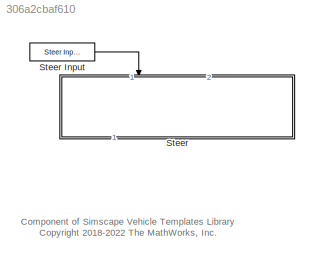
MODEL slx_306a2cbaf610
KIND library
CONFIG AbsTol = auto
CONFIG EnableMultiTasking = off
CONFIG FixedStep = auto
CONFIG MaxStep = auto
CONFIG MinStep = auto
CONFIG RelTol = 1e-3
CONFIG SampleTimeConstraint = Unconstrained
CONFIG SolverName = VariableStepAuto
CONFIG StartTime = 0.0
CONFIG StopTime = 10.0
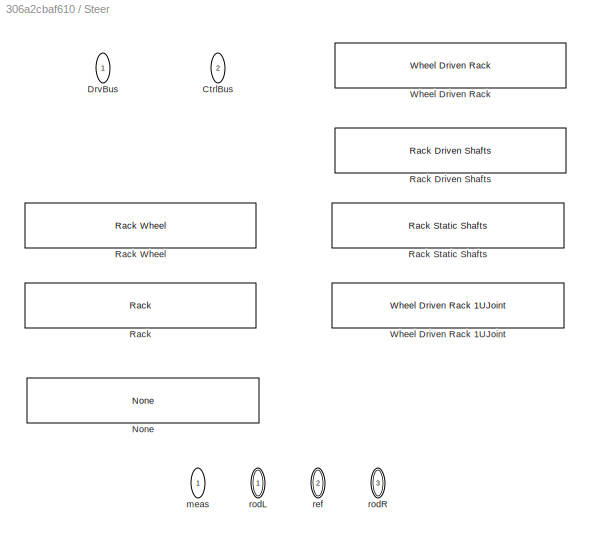
BLOCK [SubSystem] Steer
  AttributesFormatString = %<ActiveVariant>
  NameLocation = right
  Ports = [2, 1, 0, 0, 0, 0, 3]
  RequestExecContextInheritance = off
  Variant = on
  VariantControl = Steer
BLOCK [Reference] Steer Input  REF=sm_car_lib/Inputs/DrvBus/Steer Input  (lib defined in slx_05426f0848b6, slx_5dc2867fb1c9)
  Ports = [0, 1]
  SourceBlock = sm_car_lib/Inputs/DrvBus/Steer Input
BLOCK [Outport] Steer/ meas
  NameLocation = left
  VectorParamsAs1DForOutWhenUnconnected = off
BLOCK [PMIOPort] Steer/ ref
  NameLocation = left
  Port = 2
  Side = Right
BLOCK [PMIOPort] Steer/ rodL
  NameLocation = left
  Side = Right
BLOCK [PMIOPort] Steer/ rodR
  NameLocation = left
  Port = 3
  Side = Right
BLOCK [Inport] Steer/CtrlBus
  NameLocation = left
  Port = 2
BLOCK [Inport] Steer/DrvBus
  NameLocation = left
BLOCK [Reference] Steer/None  REF=Steer_Rack/None
  NameLocation = left
  Ports = [2, 1, 0, 0, 0, 0, 3]
  SourceBlock = Steer_Rack/None
  SourceType = SubSystem
BLOCK [Reference] Steer/Rack  REF=Steer_Rack/Rack
  NameLocation = left
  Ports = [2, 1, 0, 0, 0, 0, 3]
  SourceBlock = Steer_Rack/Rack
  SourceType = Steering System with Rack Actuation
  Tag = PublishSubsystem
BLOCK [Reference] Steer/Rack Driven Shafts  REF=Steer_Rack/Rack
Driven
Shafts
  NameLocation = left
  Ports = [2, 1, 0, 0, 0, 0, 3]
  SourceBlock = Steer_Rack/Rack\nDriven\nShafts
  SourceType = Steering System with Rack Actuation, Rotating Shafts
  Tag = PublishSubsystem
BLOCK [Reference] Steer/Rack Static Shafts  REF=Steer_Rack/Rack
Static
Shafts
  NameLocation = left
  Ports = [2, 1, 0, 0, 0, 0, 3]
  SourceBlock = Steer_Rack/Rack\nStatic\nShafts
  SourceType = Steering System with Rack Actuation, Static Shafts
  Tag = PublishSubsystem
BLOCK [Reference] Steer/Rack Wheel  REF=Steer_Rack/Rack
Wheel
  NameLocation = left
  Ports = [2, 1, 0, 0, 0, 0, 3]
  SourceBlock = Steer_Rack/Rack\nWheel
  SourceType = Steering System with Rack Actuation
  Tag = PublishSubsystem
BLOCK [Reference] Steer/Wheel Driven Rack  REF=Steer_Rack/Wheel
Driven
Rack
  NameLocation = left
  Ports = [2, 1, 0, 0, 0, 0, 3]
  SourceBlock = Steer_Rack/Wheel\nDriven\nRack
  SourceType = Steering System with Wheel Actuation
  Tag = PublishSubsystem
BLOCK [Reference] Steer/Wheel Driven Rack 1UJoint  REF=Steer_Rack/Wheel
Driven
Rack
1UJoint
  NameLocation = left
  Ports = [2, 1, 0, 0, 0, 0, 3]
  SourceBlock = Steer_Rack/Wheel\nDriven\nRack\n1UJoint
  SourceType = Steering System with Wheel Actuation
  Tag = PublishSubsystem
ANNOTATION (root): Component of Simscape Vehicle Templates Library <copyright redacted>
LINE Steer Input:1 -> Steer:1
